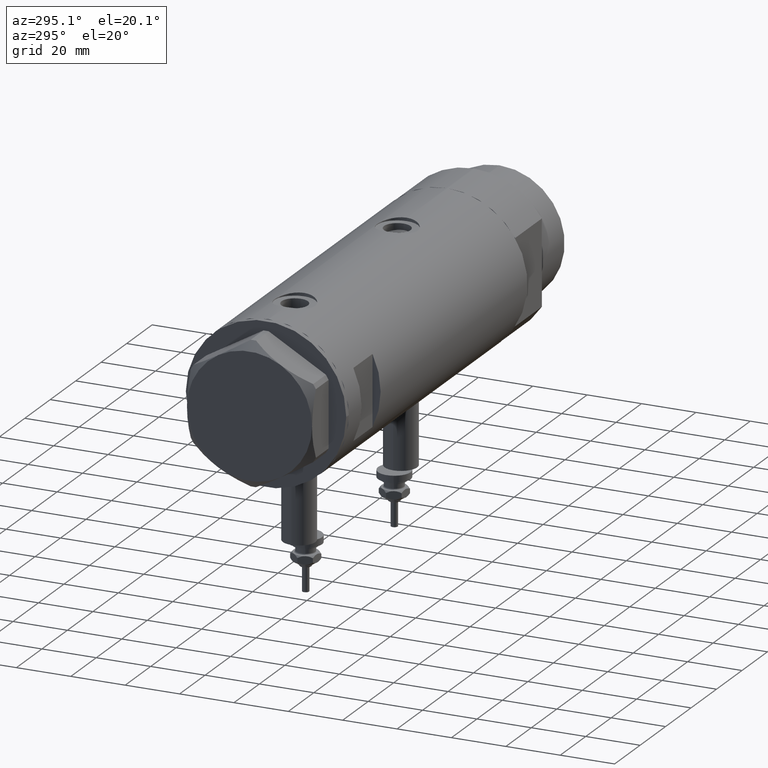
[diagram: clean part render]
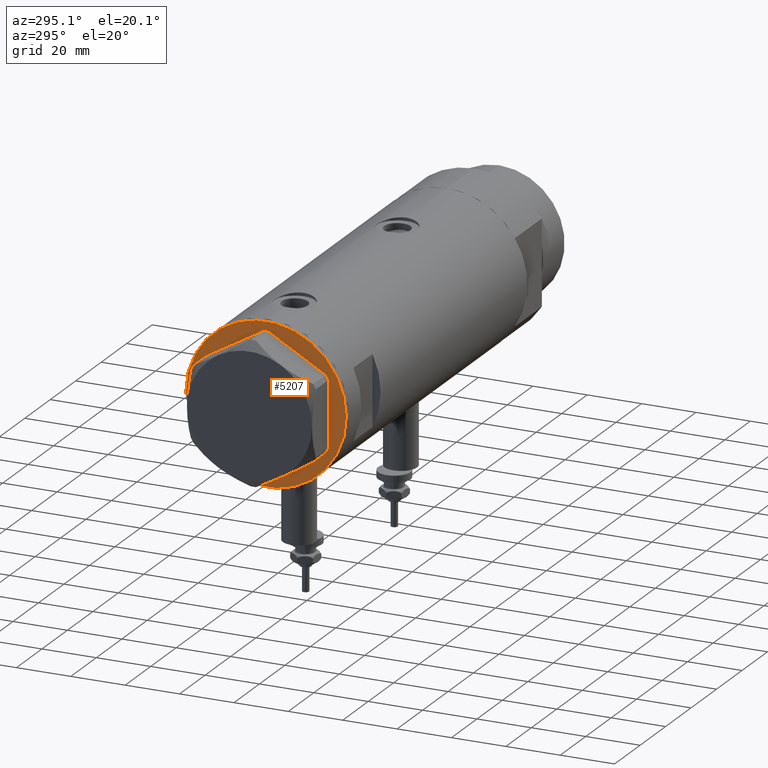
[diagram: same view with one face highlighted and labeled with its STEP entity id]
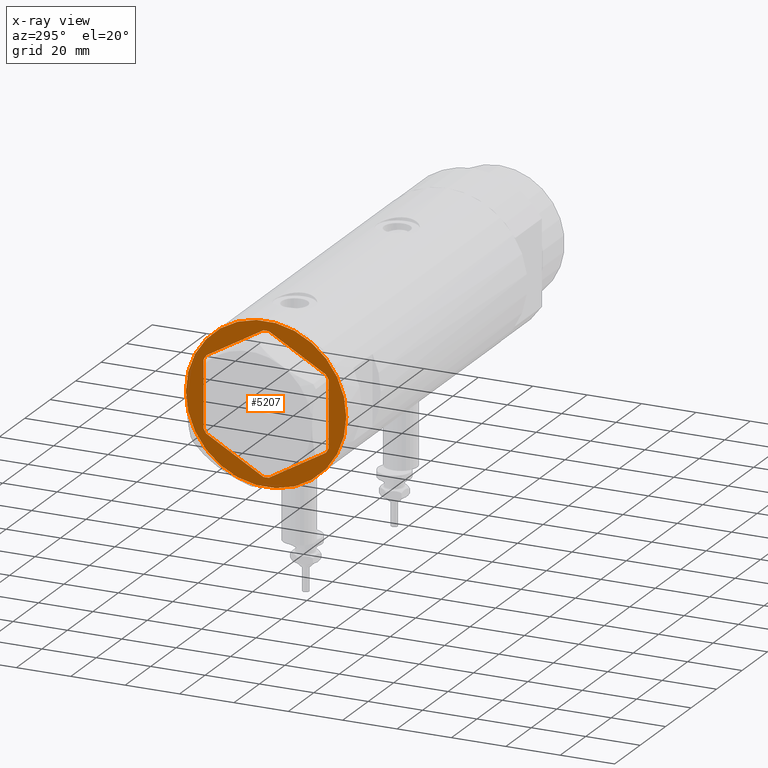
[diagram: x-ray of the same camera — body ghosted, the highlighted face saturated]
A machine part, auxiliary view. The second image highlights one B-rep face of the part: STEP entity #5207.
The next image is the same camera in x-ray: the body ghosted, the highlighted face saturated — about 0% of this face is hidden behind the body in this view.
In plain terms, the highlighted planar face has unit normal (1, 0, -0).
Its self-contained STEP definition (entity closure, byte-faithful):
#157 = VECTOR ( 'NONE', #3110, 1000.000000000000000 ) ;
#164 = EDGE_CURVE ( 'NONE', #4914, #4686, #1302, .T. ) ;
#172 = VERTEX_POINT ( 'NONE', #4958 ) ;
#235 = ORIENTED_EDGE ( 'NONE', *, *, #1831, .T. ) ;
#341 = VERTEX_POINT ( 'NONE', #1291 ) ;
#343 = CARTESIAN_POINT ( 'NONE',  ( -0.9699484522385893870, 25.99811238272273073, 0.000000000000000000 ) ) ;
#356 = AXIS2_PLACEMENT_3D ( 'NONE', #936, #4940, #2214 ) ;
#367 = DIRECTION ( 'NONE',  ( 0.8660254037844345998, 0.5000000000000069944, 0.000000000000000000 ) ) ;
#400 = VECTOR ( 'NONE', #3308, 1000.000000000000000 ) ;
#437 = DIRECTION ( 'NONE',  ( 1.000000000000000000, 3.576939520802682722E-15, -0.000000000000000000 ) ) ;
#656 = LINE ( 'NONE', #5732, #1167 ) ;
#691 = ORIENTED_EDGE ( 'NONE', *, *, #164, .T. ) ;
#694 = EDGE_CURVE ( 'NONE', #1207, #3543, #5121, .T. ) ;
#768 = CARTESIAN_POINT ( 'NONE',  ( -22.99999999999999289, 12.15905619136131754, 0.000000000000000000 ) ) ;
#788 = VERTEX_POINT ( 'NONE', #343 ) ;
#820 = CARTESIAN_POINT ( 'NONE',  ( 23.00000000000007461, -12.15905619136117721, 0.000000000000000000 ) ) ;
#901 = VERTEX_POINT ( 'NONE', #1862 ) ;
#936 = CARTESIAN_POINT ( 'NONE',  ( 0.000000000000000000, 0.000000000000000000, 0.000000000000000000 ) ) ;
#953 = CARTESIAN_POINT ( 'NONE',  ( -9.299367564803055752E-14, 25.99811238272273428, 0.000000000000000000 ) ) ;
#973 = VECTOR ( 'NONE', #3969, 1000.000000000000227 ) ;
#978 = VERTEX_POINT ( 'NONE', #5094 ) ;
#986 = ORIENTED_EDGE ( 'NONE', *, *, #2539, .F. ) ;
#988 = EDGE_CURVE ( 'NONE', #788, #1538, #5617, .T. ) ;
#997 = DIRECTION ( 'NONE',  ( 0.000000000000000000, 0.000000000000000000, -1.000000000000000000 ) ) ;
#1060 = EDGE_LOOP ( 'NONE', ( #2957, #4159 ) ) ;
#1167 = VECTOR ( 'NONE', #5628, 1000.000000000000000 ) ;
#1180 = CARTESIAN_POINT ( 'NONE',  ( -22.99999999999990408, -13.27905619136147841, 0.000000000000000000 ) ) ;
#1207 = VERTEX_POINT ( 'NONE', #5218 ) ;
#1291 = CARTESIAN_POINT ( 'NONE',  ( -29.50000000000000355, 3.612708057484692393E-15, 0.000000000000000000 ) ) ;
#1302 = LINE ( 'NONE', #5789, #157 ) ;
#1410 = CARTESIAN_POINT ( 'NONE',  ( 0.000000000000000000, 0.000000000000000000, 0.000000000000000000 ) ) ;
#1455 = DIRECTION ( 'NONE',  ( -0.8660254037844415942, 0.4999999999999949485, 0.000000000000000000 ) ) ;
#1494 = VERTEX_POINT ( 'NONE', #3538 ) ;
#1525 = CARTESIAN_POINT ( 'NONE',  ( 0.000000000000000000, 26.55811238272274366, 0.000000000000000000 ) ) ;
#1538 = VERTEX_POINT ( 'NONE', #4438 ) ;
#1831 = EDGE_CURVE ( 'NONE', #788, #3543, #5093, .T. ) ;
#1832 = FACE_OUTER_BOUND ( 'NONE', #1060, .T. ) ;
#1862 = CARTESIAN_POINT ( 'NONE',  ( 22.99999999999982236, 12.15905619136166571, 0.000000000000000000 ) ) ;
#1898 = CARTESIAN_POINT ( 'NONE',  ( 22.99999999999981171, 13.27905619136164184, 0.000000000000000000 ) ) ;
#2033 = EDGE_CURVE ( 'NONE', #1207, #901, #3360, .T. ) ;
#2199 = DIRECTION ( 'NONE',  ( 0.8660254037844415942, -0.4999999999999950595, 0.000000000000000000 ) ) ;
#2214 = DIRECTION ( 'NONE',  ( -1.000000000000000000, 0.000000000000000000, -0.000000000000000000 ) ) ;
#2292 = ORIENTED_EDGE ( 'NONE', *, *, #3165, .T. ) ;
#2293 = VECTOR ( 'NONE', #4899, 1000.000000000000000 ) ;
#2305 = ORIENTED_EDGE ( 'NONE', *, *, #3536, .F. ) ;
#2319 = VERTEX_POINT ( 'NONE', #2402 ) ;
#2360 = DIRECTION ( 'NONE',  ( 0.5000000000000086597, -0.8660254037844337116, -0.000000000000000000 ) ) ;
#2374 = VECTOR ( 'NONE', #2199, 1000.000000000000000 ) ;
#2402 = CARTESIAN_POINT ( 'NONE',  ( -22.99999999999990763, -12.15905619136148985, 0.000000000000000000 ) ) ;
#2489 = CARTESIAN_POINT ( 'NONE',  ( -22.51502577388069781, 12.99905619136134050, 0.000000000000000000 ) ) ;
#2539 = EDGE_CURVE ( 'NONE', #978, #4686, #5016, .T. ) ;
#2582 = LINE ( 'NONE', #2489, #973 ) ;
#2658 = EDGE_CURVE ( 'NONE', #5670, #901, #5347, .T. ) ;
#2790 = CARTESIAN_POINT ( 'NONE',  ( 0.9699484522387533669, -25.99811238272273428, 0.000000000000000000 ) ) ;
#2814 = CARTESIAN_POINT ( 'NONE',  ( 0.000000000000000000, 0.000000000000000000, 0.000000000000000000 ) ) ;
#2957 = ORIENTED_EDGE ( 'NONE', *, *, #4703, .F. ) ;
#3006 = LINE ( 'NONE', #4805, #3406 ) ;
#3007 = ORIENTED_EDGE ( 'NONE', *, *, #2033, .T. ) ;
#3037 = AXIS2_PLACEMENT_3D ( 'NONE', #1410, #997, #4163 ) ;
#3093 = CARTESIAN_POINT ( 'NONE',  ( 23.00000000000008527, -13.27905619136115867, 0.000000000000000000 ) ) ;
#3110 = DIRECTION ( 'NONE',  ( -1.000000000000000000, -7.153879041605523216E-15, -0.000000000000000000 ) ) ;
#3165 = EDGE_CURVE ( 'NONE', #5670, #172, #656, .T. ) ;
#3298 = EDGE_CURVE ( 'NONE', #3401, #1538, #2582, .T. ) ;
#3308 = DIRECTION ( 'NONE',  ( 3.527173405730720141E-15, -1.000000000000000000, 0.000000000000000000 ) ) ;
#3335 = VECTOR ( 'NONE', #2360, 999.9999999999998863 ) ;
#3360 = LINE ( 'NONE', #5569, #3335 ) ;
#3372 = CARTESIAN_POINT ( 'NONE',  ( -22.99999999999999645, 13.27905619136132032, 0.000000000000000000 ) ) ;
#3401 = VERTEX_POINT ( 'NONE', #768 ) ;
#3406 = VECTOR ( 'NONE', #3459, 1000.000000000000000 ) ;
#3459 = DIRECTION ( 'NONE',  ( -0.5000000000000086597, 0.8660254037844337116, -0.000000000000000000 ) ) ;
#3512 = ORIENTED_EDGE ( 'NONE', *, *, #5038, .T. ) ;
#3536 = EDGE_CURVE ( 'NONE', #3401, #2319, #4750, .T. ) ;
#3538 = CARTESIAN_POINT ( 'NONE',  ( 29.50000000000000355, 0.000000000000000000, 0.000000000000000000 ) ) ;
#3543 = VERTEX_POINT ( 'NONE', #5665 ) ;
#3709 = FACE_BOUND ( 'NONE', #4527, .T. ) ;
#3747 = ORIENTED_EDGE ( 'NONE', *, *, #988, .F. ) ;
#3969 = DIRECTION ( 'NONE',  ( 0.4999999999999986677, 0.8660254037844392627, -0.000000000000000000 ) ) ;
#3997 = CIRCLE ( 'NONE', #3037, 29.50000000000000355 ) ;
#4033 = ORIENTED_EDGE ( 'NONE', *, *, #694, .F. ) ;
#4155 = DIRECTION ( 'NONE',  ( -1.000000000000000000, 0.000000000000000000, 0.000000000000000000 ) ) ;
#4159 = ORIENTED_EDGE ( 'NONE', *, *, #4352, .F. ) ;
#4163 = DIRECTION ( 'NONE',  ( -1.000000000000000000, 0.000000000000000000, 0.000000000000000000 ) ) ;
#4169 = ORIENTED_EDGE ( 'NONE', *, *, #3298, .T. ) ;
#4190 = ORIENTED_EDGE ( 'NONE', *, *, #4555, .F. ) ;
#4271 = DIRECTION ( 'NONE',  ( 0.000000000000000000, 0.000000000000000000, -1.000000000000000000 ) ) ;
#4291 = VECTOR ( 'NONE', #4745, 1000.000000000000227 ) ;
#4352 = EDGE_CURVE ( 'NONE', #341, #1494, #3997, .T. ) ;
#4407 = ORIENTED_EDGE ( 'NONE', *, *, #2658, .F. ) ;
#4438 = CARTESIAN_POINT ( 'NONE',  ( -22.03005154776141339, 13.83905619136132792, 0.000000000000000000 ) ) ;
#4527 = EDGE_LOOP ( 'NONE', ( #4033, #3007, #4407, #2292, #4190, #691, #986, #3512, #2305, #4169, #3747, #235 ) ) ;
#4551 = VECTOR ( 'NONE', #367, 999.9999999999998863 ) ;
#4555 = EDGE_CURVE ( 'NONE', #4914, #172, #5450, .T. ) ;
#4568 = CIRCLE ( 'NONE', #5595, 29.50000000000000355 ) ;
#4686 = VERTEX_POINT ( 'NONE', #5102 ) ;
#4703 = EDGE_CURVE ( 'NONE', #1494, #341, #4568, .T. ) ;
#4745 = DIRECTION ( 'NONE',  ( -0.8660254037844380415, -0.5000000000000008882, 0.000000000000000000 ) ) ;
#4750 = LINE ( 'NONE', #3372, #400 ) ;
#4805 = CARTESIAN_POINT ( 'NONE',  ( -22.51502577388055215, -12.99905619136159629, 0.000000000000000000 ) ) ;
#4899 = DIRECTION ( 'NONE',  ( -1.032024811306395780E-14, 1.000000000000000000, 0.000000000000000000 ) ) ;
#4914 = VERTEX_POINT ( 'NONE', #2790 ) ;
#4940 = DIRECTION ( 'NONE',  ( 0.000000000000000000, 0.000000000000000000, -1.000000000000000000 ) ) ;
#4958 = CARTESIAN_POINT ( 'NONE',  ( 22.03005154776153773, -13.83905619136115561, 0.000000000000000000 ) ) ;
#4966 = VECTOR ( 'NONE', #1455, 999.9999999999998863 ) ;
#5016 = LINE ( 'NONE', #1180, #2374 ) ;
#5024 = PLANE ( 'NONE',  #356 ) ;
#5038 = EDGE_CURVE ( 'NONE', #978, #2319, #3006, .T. ) ;
#5093 = LINE ( 'NONE', #953, #5640 ) ;
#5094 = CARTESIAN_POINT ( 'NONE',  ( -22.03005154776132102, -13.83905619136147536, 0.000000000000000000 ) ) ;
#5102 = CARTESIAN_POINT ( 'NONE',  ( -0.9699484522383873264, -25.99811238272275205, 0.000000000000000000 ) ) ;
#5121 = LINE ( 'NONE', #1898, #4966 ) ;
#5207 = ADVANCED_FACE ( 'NONE', ( #3709, #1832 ), #5024, .F. ) ;
#5218 = CARTESIAN_POINT ( 'NONE',  ( 22.03005154776124996, 13.83905619136162635, 0.000000000000000000 ) ) ;
#5347 = LINE ( 'NONE', #3093, #2293 ) ;
#5450 = LINE ( 'NONE', #5496, #4551 ) ;
#5496 = CARTESIAN_POINT ( 'NONE',  ( 1.854543075583504180E-13, -26.55811238272274366, 0.000000000000000000 ) ) ;
#5569 = CARTESIAN_POINT ( 'NONE',  ( 22.51502577388055926, 12.99905619136160162, 0.000000000000000000 ) ) ;
#5595 = AXIS2_PLACEMENT_3D ( 'NONE', #2814, #4271, #4155 ) ;
#5617 = LINE ( 'NONE', #1525, #4291 ) ;
#5628 = DIRECTION ( 'NONE',  ( -0.4999999999999915623, -0.8660254037844434816, -0.000000000000000000 ) ) ;
#5640 = VECTOR ( 'NONE', #437, 1000.000000000000000 ) ;
#5665 = CARTESIAN_POINT ( 'NONE',  ( 0.9699484522385886098, 25.99811238272273783, 0.000000000000000000 ) ) ;
#5670 = VERTEX_POINT ( 'NONE', #820 ) ;
#5732 = CARTESIAN_POINT ( 'NONE',  ( 22.51502577388080795, -12.99905619136115398, 0.000000000000000000 ) ) ;
#5789 = CARTESIAN_POINT ( 'NONE',  ( 1.859873512960652550E-13, -25.99811238272274139, 0.000000000000000000 ) ) ;